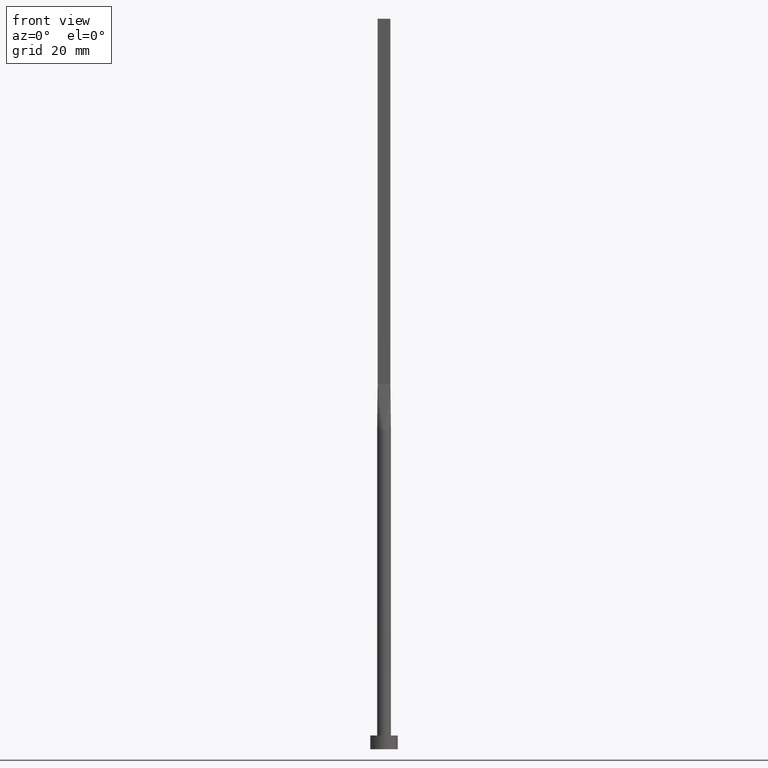
[diagram: clean part render]
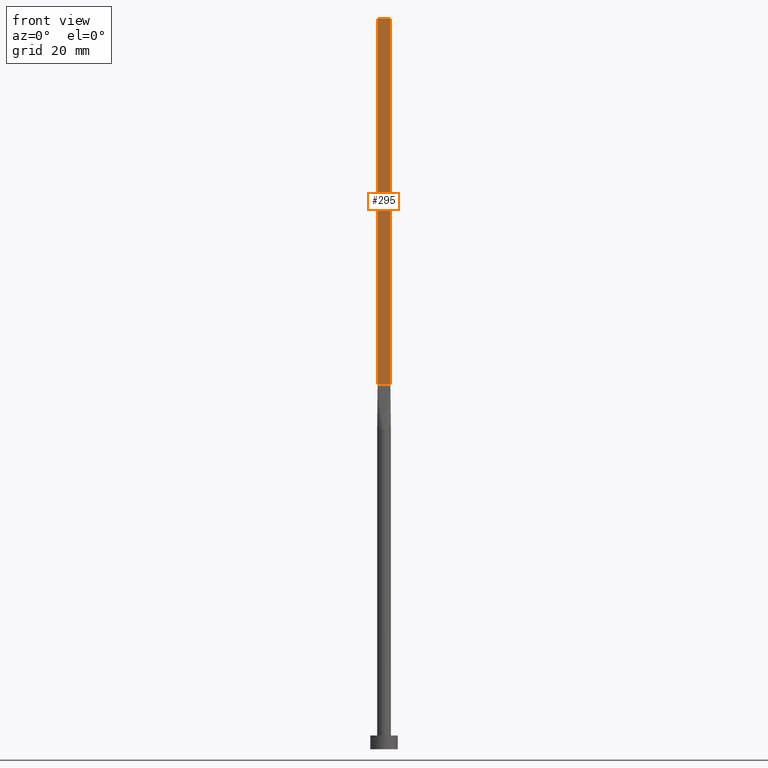
[diagram: same view with one face highlighted and labeled with its STEP entity id]
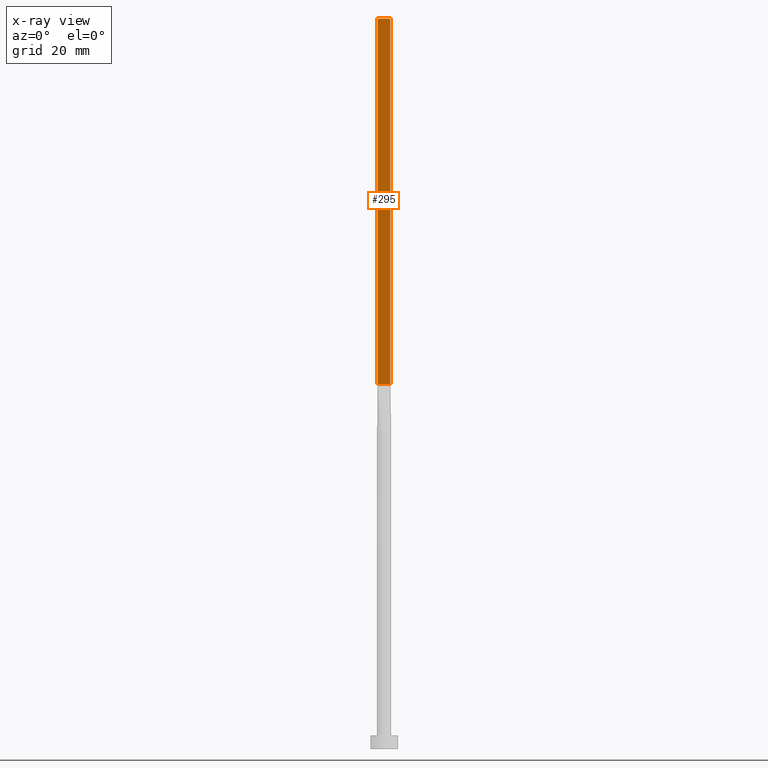
[diagram: x-ray of the same camera — body ghosted, the highlighted face saturated]
A machine part, front view. The second image highlights one B-rep face of the part: STEP entity #295.
The next image is the same camera in x-ray: the body ghosted, the highlighted face saturated — about 0% of this face is hidden behind the body in this view.
In plain terms, the highlighted planar face has unit normal (0, 1, -0).
Its self-contained STEP definition (entity closure, byte-faithful):
#13 = VECTOR ( 'NONE', #61, 1000.000000000000000 ) ;
#22 = CARTESIAN_POINT ( 'NONE',  ( -1.399999999999999911, -0.4999999999999995559, 80.00000000000000000 ) ) ;
#28 = CARTESIAN_POINT ( 'NONE',  ( 1.399999999999999911, -0.4999999999999997780, 160.0000000000000000 ) ) ;
#34 = EDGE_CURVE ( 'NONE', #57, #48, #232, .T. ) ;
#37 = AXIS2_PLACEMENT_3D ( 'NONE', #292, #397, #571 ) ;
#48 = VERTEX_POINT ( 'NONE', #337 ) ;
#57 = VERTEX_POINT ( 'NONE', #472 ) ;
#61 = DIRECTION ( 'NONE',  ( 1.000000000000000000, -7.744301232039317914E-17, 0.000000000000000000 ) ) ;
#123 = CARTESIAN_POINT ( 'NONE',  ( 1.399999999999999911, -0.4999999999999997780, 80.00000000000000000 ) ) ;
#148 = ORIENTED_EDGE ( 'NONE', *, *, #553, .T. ) ;
#194 = DIRECTION ( 'NONE',  ( -0.000000000000000000, -0.000000000000000000, -1.000000000000000000 ) ) ;
#205 = PLANE ( 'NONE',  #37 ) ;
#232 = LINE ( 'NONE', #541, #263 ) ;
#248 = CARTESIAN_POINT ( 'NONE',  ( -1.399999999999999911, -0.4999999999999995559, 160.0000000000000000 ) ) ;
#262 = CARTESIAN_POINT ( 'NONE',  ( -1.399999999999999911, -0.4999999999999995559, 80.00000000000000000 ) ) ;
#263 = VECTOR ( 'NONE', #429, 1000.000000000000000 ) ;
#264 = VECTOR ( 'NONE', #506, 1000.000000000000000 ) ;
#292 = CARTESIAN_POINT ( 'NONE',  ( -1.399999999999999911, -0.4999999999999995559, 160.0000000000000000 ) ) ;
#295 = ADVANCED_FACE ( 'NONE', ( #483 ), #205, .F. ) ;
#337 = CARTESIAN_POINT ( 'NONE',  ( 1.399999999999999911, -0.4999999999999997780, 160.0000000000000000 ) ) ;
#346 = VECTOR ( 'NONE', #194, 1000.000000000000000 ) ;
#349 = ORIENTED_EDGE ( 'NONE', *, *, #530, .T. ) ;
#397 = DIRECTION ( 'NONE',  ( 7.744301232039317914E-17, 1.000000000000000000, -0.000000000000000000 ) ) ;
#420 = LINE ( 'NONE', #248, #264 ) ;
#429 = DIRECTION ( 'NONE',  ( 1.000000000000000000, -7.744301232039317914E-17, 0.000000000000000000 ) ) ;
#435 = LINE ( 'NONE', #28, #346 ) ;
#468 = VERTEX_POINT ( 'NONE', #123 ) ;
#472 = CARTESIAN_POINT ( 'NONE',  ( -1.399999999999999911, -0.4999999999999995559, 160.0000000000000000 ) ) ;
#483 = FACE_OUTER_BOUND ( 'NONE', #569, .T. ) ;
#499 = ORIENTED_EDGE ( 'NONE', *, *, #565, .F. ) ;
#505 = VERTEX_POINT ( 'NONE', #262 ) ;
#506 = DIRECTION ( 'NONE',  ( -0.000000000000000000, -0.000000000000000000, -1.000000000000000000 ) ) ;
#530 = EDGE_CURVE ( 'NONE', #505, #468, #557, .T. ) ;
#541 = CARTESIAN_POINT ( 'NONE',  ( -1.399999999999999911, -0.4999999999999995559, 160.0000000000000000 ) ) ;
#553 = EDGE_CURVE ( 'NONE', #57, #505, #420, .T. ) ;
#557 = LINE ( 'NONE', #22, #13 ) ;
#565 = EDGE_CURVE ( 'NONE', #48, #468, #435, .T. ) ;
#566 = ORIENTED_EDGE ( 'NONE', *, *, #34, .F. ) ;
#569 = EDGE_LOOP ( 'NONE', ( #349, #499, #566, #148 ) ) ;
#571 = DIRECTION ( 'NONE',  ( -1.000000000000000000, 7.744301232039317914E-17, 0.000000000000000000 ) ) ;